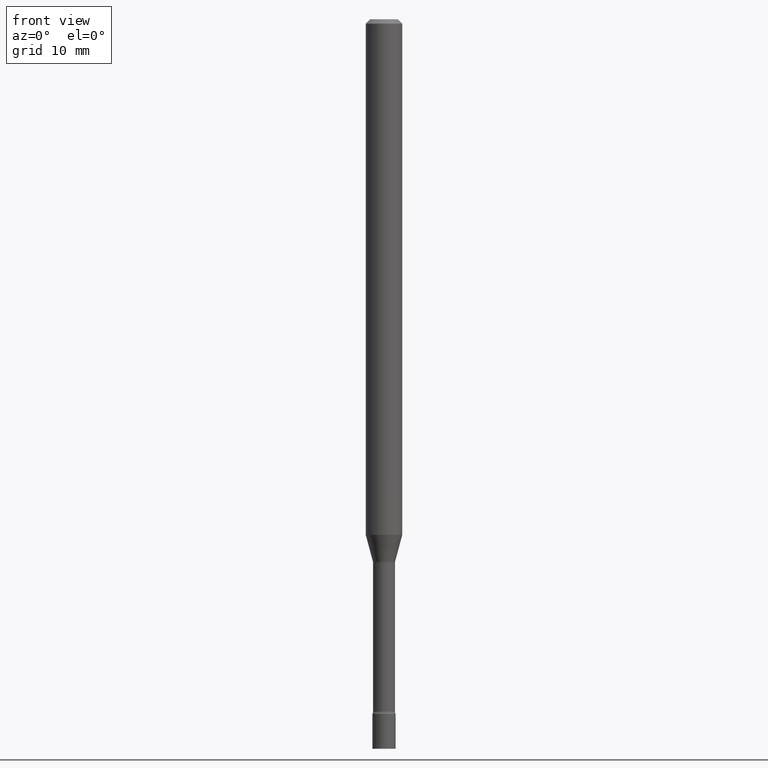
[diagram: clean part render]
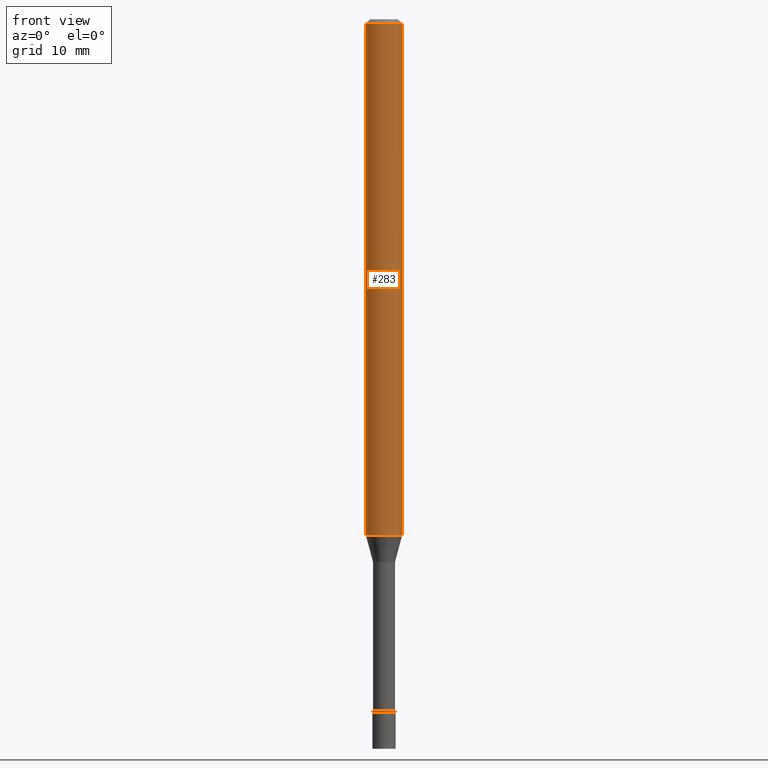
[diagram: same view with one face highlighted and labeled with its STEP entity id]
A machine part, front view. The second image highlights one B-rep face of the part: STEP entity #283.
In plain terms, the highlighted cylindrical surface (edge-blend (fillet) strip) has radius 1.5875 mm, axis along (-0, 0, 1).
Its self-contained STEP definition (entity closure, byte-faithful):
#17 = CARTESIAN_POINT ( 'NONE',  ( 0.06250000000000000000, -6.606133852422636036E-15, -1.767071934891535134 ) ) ;
#19 = CYLINDRICAL_SURFACE ( 'NONE', #294, 0.06250000000000000000 ) ;
#27 = CARTESIAN_POINT ( 'NONE',  ( 3.668203209277712094E-31, -5.237222008264728876E-17, -0.01500000000000003067 ) ) ;
#33 = CIRCLE ( 'NONE', #97, 0.06250000000000000000 ) ;
#63 = ORIENTED_EDGE ( 'NONE', *, *, #375, .T. ) ;
#67 = DIRECTION ( 'NONE',  ( -2.445468806185136597E-29, 3.491481338843145583E-15, 1.000000000000000000 ) ) ;
#97 = AXIS2_PLACEMENT_3D ( 'NONE', #27, #399, #424 ) ;
#105 = DIRECTION ( 'NONE',  ( -2.445468806185136877E-29, 3.491481338843145188E-15, 1.000000000000000000 ) ) ;
#108 = ORIENTED_EDGE ( 'NONE', *, *, #436, .T. ) ;
#109 = DIRECTION ( 'NONE',  ( 1.000000000000000000, -6.982962677686266711E-15, 4.876176775795935793E-29 ) ) ;
#119 = VERTEX_POINT ( 'NONE', #410 ) ;
#127 = CARTESIAN_POINT ( 'NONE',  ( 0.06250000000000000000, -4.364351673553916694E-16, 3.047610484872459871E-30 ) ) ;
#154 = LINE ( 'NONE', #127, #365 ) ;
#156 = ORIENTED_EDGE ( 'NONE', *, *, #263, .F. ) ;
#184 = LINE ( 'NONE', #495, #187 ) ;
#187 = VECTOR ( 'NONE', #105, 39.37007874015748143 ) ;
#192 = VERTEX_POINT ( 'NONE', #17 ) ;
#200 = CARTESIAN_POINT ( 'NONE',  ( 0.06250000000000000000, -4.888073874380389458E-16, -0.01500000000000003067 ) ) ;
#209 = AXIS2_PLACEMENT_3D ( 'NONE', #514, #363, #428 ) ;
#261 = CIRCLE ( 'NONE', #209, 0.06250000000000000000 ) ;
#263 = EDGE_CURVE ( 'NONE', #273, #119, #184, .T. ) ;
#273 = VERTEX_POINT ( 'NONE', #497 ) ;
#283 = ADVANCED_FACE ( 'NONE', ( #380 ), #19, .T. ) ;
#294 = AXIS2_PLACEMENT_3D ( 'NONE', #417, #67, #109 ) ;
#305 = VERTEX_POINT ( 'NONE', #200 ) ;
#344 = EDGE_LOOP ( 'NONE', ( #156, #63, #108, #435 ) ) ;
#363 = DIRECTION ( 'NONE',  ( -2.445468806185136597E-29, 3.491481338843145583E-15, 1.000000000000000000 ) ) ;
#365 = VECTOR ( 'NONE', #472, 39.37007874015748143 ) ;
#375 = EDGE_CURVE ( 'NONE', #273, #192, #261, .T. ) ;
#380 = FACE_OUTER_BOUND ( 'NONE', #344, .T. ) ;
#399 = DIRECTION ( 'NONE',  ( -2.445468806185136597E-29, 3.491481338843145583E-15, 1.000000000000000000 ) ) ;
#410 = CARTESIAN_POINT ( 'NONE',  ( -0.06250000000000000000, -2.666946242724883698E-15, -0.01500000000000003067 ) ) ;
#417 = CARTESIAN_POINT ( 'NONE',  ( 0.000000000000000000, 0.000000000000000000, 0.000000000000000000 ) ) ;
#424 = DIRECTION ( 'NONE',  ( 1.000000000000000000, -6.982962677686266711E-15, 0.000000000000000000 ) ) ;
#428 = DIRECTION ( 'NONE',  ( 1.000000000000000000, -6.982962677686262766E-15, 0.000000000000000000 ) ) ;
#435 = ORIENTED_EDGE ( 'NONE', *, *, #445, .F. ) ;
#436 = EDGE_CURVE ( 'NONE', #192, #305, #154, .T. ) ;
#445 = EDGE_CURVE ( 'NONE', #119, #305, #33, .T. ) ;
#472 = DIRECTION ( 'NONE',  ( -2.445468806185136877E-29, 3.491481338843145188E-15, 1.000000000000000000 ) ) ;
#495 = CARTESIAN_POINT ( 'NONE',  ( -0.06250000000000000000, 4.440892098500626162E-16, -3.074334431409316114E-30 ) ) ;
#497 = CARTESIAN_POINT ( 'NONE',  ( -0.06250000000000000000, -5.725609475217180962E-15, -1.767071934891535134 ) ) ;
#514 = CARTESIAN_POINT ( 'NONE',  ( 4.321319295062462041E-29, -6.169698685067244367E-15, -1.767071934891535134 ) ) ;